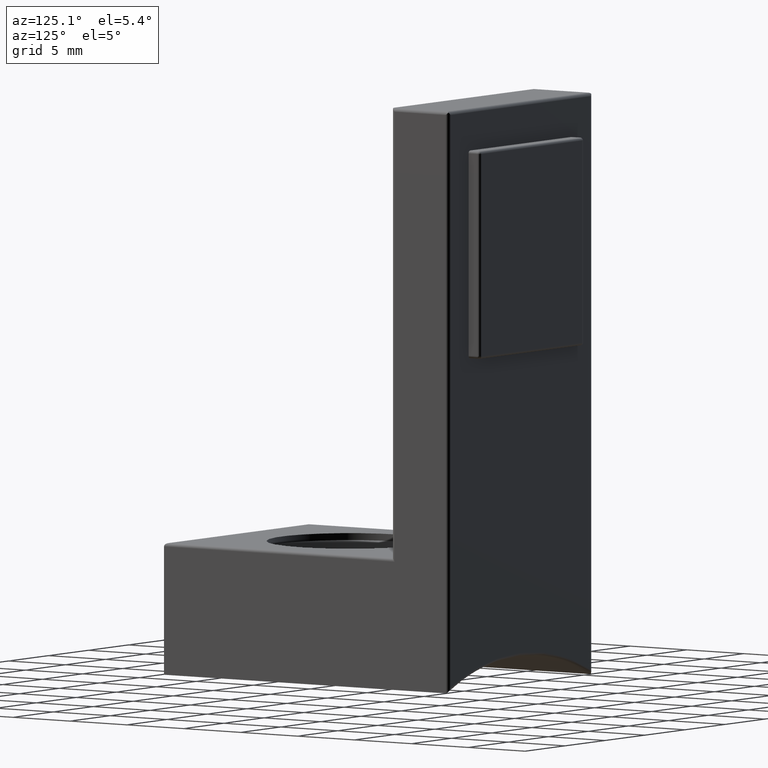
[diagram: clean part render]
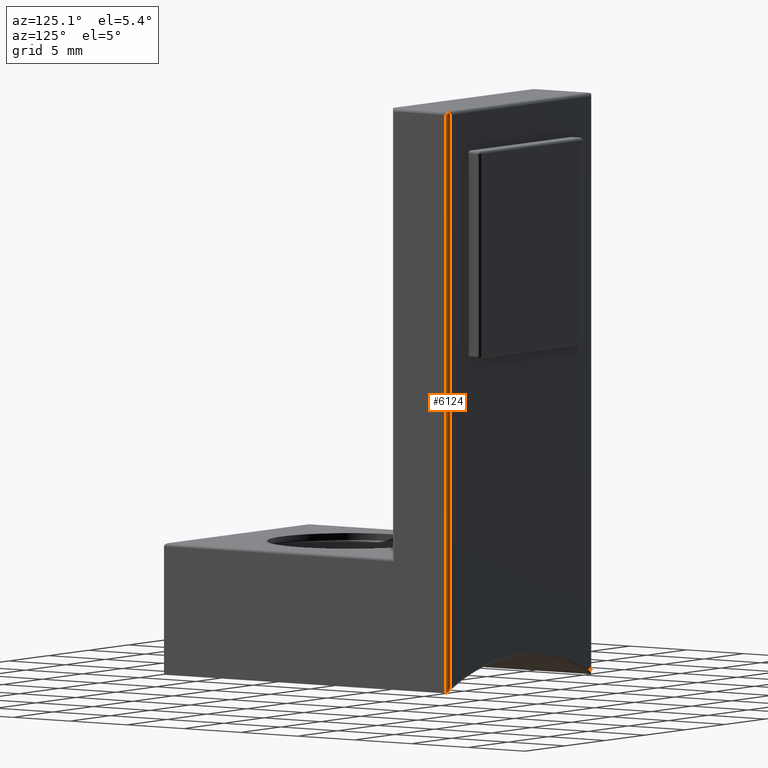
[diagram: same view with one face highlighted and labeled with its STEP entity id]
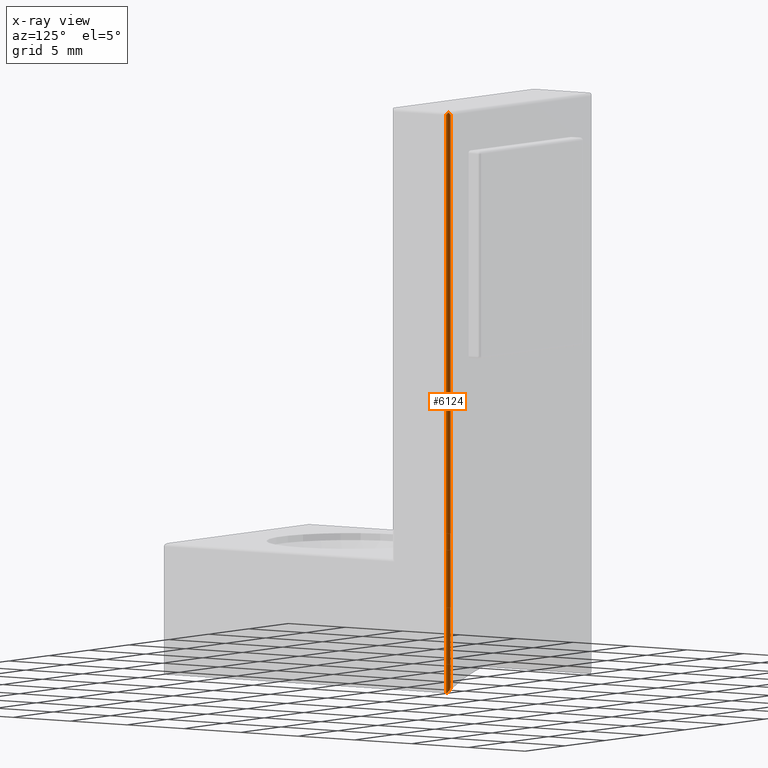
[diagram: x-ray of the same camera — body ghosted, the highlighted face saturated]
A machine part, auxiliary view. The second image highlights one B-rep face of the part: STEP entity #6124.
The next image is the same camera in x-ray: the body ghosted, the highlighted face saturated — about 0% of this face is hidden behind the body in this view.
In plain terms, the highlighted cylindrical surface (edge-blend (fillet) strip) has radius 0.25 mm, axis along (0, 0, 1).
Its self-contained STEP definition (entity closure, byte-faithful):
#395 = CARTESIAN_POINT ( 'NONE',  ( 8.879265995849358700, -0.02571260525608492700, 39.87926599584935200 ) ) ;
#822 = CARTESIAN_POINT ( 'NONE',  ( 9.000000000000000000, -0.2500000000000002200, -2.005209039950446700 ) ) ;
#1019 = CARTESIAN_POINT ( 'NONE',  ( 8.853750520725995400, -0.01489599276345006000, -1.776330487182838700 ) ) ;
#1110 = CARTESIAN_POINT ( 'NONE',  ( 8.999999999999998200, -0.2014774436080190900, -2.005209039950446700 ) ) ;
#1120 = ORIENTED_EDGE ( 'NONE', *, *, #13815, .T. ) ;
#1326 = DIRECTION ( 'NONE',  ( 0.0000000000000000000, 0.0000000000000000000, 1.000000000000000000 ) ) ;
#1520 = DIRECTION ( 'NONE',  ( -0.0000000000000000000, -0.0000000000000000000, -1.000000000000000000 ) ) ;
#2039 = CARTESIAN_POINT ( 'NONE',  ( 9.000000000000001800, -0.1828097244838274000, 39.81719027551617500 ) ) ;
#2116 = AXIS2_PLACEMENT_3D ( 'NONE', #13678, #1326, #2443 ) ;
#2443 = DIRECTION ( 'NONE',  ( 1.000000000000000000, 0.0000000000000000000, 0.0000000000000000000 ) ) ;
#2626 = VERTEX_POINT ( 'NONE', #3039 ) ;
#2982 = ORIENTED_EDGE ( 'NONE', *, *, #9483, .F. ) ;
#3039 = CARTESIAN_POINT ( 'NONE',  ( 8.749999999999998200, 0.0000000000000000000, -1.615822713220756300 ) ) ;
#3168 = CARTESIAN_POINT ( 'NONE',  ( 8.749999999999998200, 0.0000000000000000000, -1.615822713220756300 ) ) ;
#3216 = CARTESIAN_POINT ( 'NONE',  ( 8.947746499742132500, -0.09252084532234324000, -1.923149227707359600 ) ) ;
#3263 = CARTESIAN_POINT ( 'NONE',  ( 8.985219973252762700, -0.1573991009696721600, -1.981946563265104800 ) ) ;
#3803 = EDGE_CURVE ( 'NONE', #11946, #2626, #11781, .T. ) ;
#3829 = CARTESIAN_POINT ( 'NONE',  ( 8.926776695296634800, -0.07322330470336260700, 39.92677669529663800 ) ) ;
#4110 = ORIENTED_EDGE ( 'NONE', *, *, #4401, .F. ) ;
#4401 = EDGE_CURVE ( 'NONE', #13651, #5058, #13533, .T. ) ;
#4482 = CARTESIAN_POINT ( 'NONE',  ( 8.801988354294215000, -1.202786785101106500E-016, -1.695997620926222200 ) ) ;
#4735 = VERTEX_POINT ( 'NONE', #5814 ) ;
#4837 = CARTESIAN_POINT ( 'NONE',  ( 8.749999999999998200, 0.0000000000000000000, 39.75000000000000000 ) ) ;
#4932 = CARTESIAN_POINT ( 'NONE',  ( 8.749999999999998200, 0.0000000000000000000, 40.00000000000000000 ) ) ;
#4947 = ORIENTED_EDGE ( 'NONE', *, *, #13011, .F. ) ;
#5058 = VERTEX_POINT ( 'NONE', #9120 ) ;
#5702 = VECTOR ( 'NONE', #6164, 1000.000000000000000 ) ;
#5814 = CARTESIAN_POINT ( 'NONE',  ( 9.000000000000000000, -0.2500000000000000000, 39.75000000000000000 ) ) ;
#6124 = ADVANCED_FACE ( 'NONE', ( #13071 ), #10613, .T. ) ;
#6164 = DIRECTION ( 'NONE',  ( 0.0000000000000000000, 0.0000000000000000000, 1.000000000000000000 ) ) ;
#7101 = ORIENTED_EDGE ( 'NONE', *, *, #3803, .T. ) ;
#7326 = EDGE_LOOP ( 'NONE', ( #4110, #1120, #4947, #7101, #2982 ) ) ;
#7717 = CARTESIAN_POINT ( 'NONE',  ( 8.974287394743912600, -0.1207340041506412000, 39.87926599584935200 ) ) ;
#7762 = CARTESIAN_POINT ( 'NONE',  ( 8.926776695296634800, -0.07322330470336260700, 39.92677669529663800 ) ) ;
#8273 = CARTESIAN_POINT ( 'NONE',  ( 8.817190275516173500, -1.667445436650611200E-016, 39.81719027551618200 ) ) ;
#8470 =( BOUNDED_CURVE ( )  B_SPLINE_CURVE ( 3, ( #7762, #7717, #2039, #14392 ),
 .UNSPECIFIED., .F., .F. ) 
 B_SPLINE_CURVE_WITH_KNOTS ( ( 4, 4 ),
 ( 0.7853981633974479500, 1.570796326794896800 ),
 .UNSPECIFIED. ) 
 CURVE ( )  GEOMETRIC_REPRESENTATION_ITEM ( )  RATIONAL_B_SPLINE_CURVE ( ( 1.000000000000000000, 0.9492530216741910100, 0.9492530216741910100, 1.000000000000000000 ) ) 
 REPRESENTATION_ITEM ( '' )  );
#9072 = LINE ( 'NONE', #13987, #5702 ) ;
#9120 = CARTESIAN_POINT ( 'NONE',  ( 8.749999999999998200, 0.0000000000000000000, 39.75000000000000000 ) ) ;
#9483 = EDGE_CURVE ( 'NONE', #5058, #2626, #13782, .T. ) ;
#9565 = CARTESIAN_POINT ( 'NONE',  ( 8.926776695296634800, -0.07322330470336260700, 39.92677669529663800 ) ) ;
#10613 = CYLINDRICAL_SURFACE ( 'NONE', #2116, 0.2500000000000002200 ) ;
#11781 = B_SPLINE_CURVE_WITH_KNOTS ( 'NONE', 3,
 ( #822, #1110, #3263, #3216, #12267, #1019, #4482, #3168 ),
 .UNSPECIFIED., .F., .F.,
 ( 4, 2, 2, 4 ),
 ( 1.084202172485504400E-019, 0.0001433325920775598900, 0.0002866651841551196700, 0.0005733303683102392300 ),
 .UNSPECIFIED. ) ;
#11946 = VERTEX_POINT ( 'NONE', #14212 ) ;
#12267 = CARTESIAN_POINT ( 'NONE',  ( 8.924823542842759100, -0.06883365362102786300, -1.887257439424984400 ) ) ;
#13011 = EDGE_CURVE ( 'NONE', #11946, #4735, #9072, .T. ) ;
#13071 = FACE_OUTER_BOUND ( 'NONE', #7326, .T. ) ;
#13533 =( BOUNDED_CURVE ( )  B_SPLINE_CURVE ( 3, ( #3829, #395, #8273, #4837 ),
 .UNSPECIFIED., .F., .T. ) 
 B_SPLINE_CURVE_WITH_KNOTS ( ( 4, 4 ),
 ( 0.7853981633974518300, 1.570796326794896600 ),
 .UNSPECIFIED. ) 
 CURVE ( )  GEOMETRIC_REPRESENTATION_ITEM ( )  RATIONAL_B_SPLINE_CURVE ( ( 1.000000000000000000, 0.9492530216741915700, 0.9492530216741915700, 1.000000000000000000 ) ) 
 REPRESENTATION_ITEM ( '' )  );
#13651 = VERTEX_POINT ( 'NONE', #9565 ) ;
#13678 = CARTESIAN_POINT ( 'NONE',  ( 8.749999999999998200, -0.2500000000000000000, 0.0000000000000000000 ) ) ;
#13782 = LINE ( 'NONE', #4932, #14127 ) ;
#13815 = EDGE_CURVE ( 'NONE', #13651, #4735, #8470, .T. ) ;
#13987 = CARTESIAN_POINT ( 'NONE',  ( 9.000000000000000000, -0.2500000000000000000, 0.0000000000000000000 ) ) ;
#14127 = VECTOR ( 'NONE', #1520, 1000.000000000000000 ) ;
#14212 = CARTESIAN_POINT ( 'NONE',  ( 9.000000000000000000, -0.2500000000000002200, -2.005209039950446700 ) ) ;
#14392 = CARTESIAN_POINT ( 'NONE',  ( 9.000000000000000000, -0.2500000000000000000, 39.75000000000000000 ) ) ;